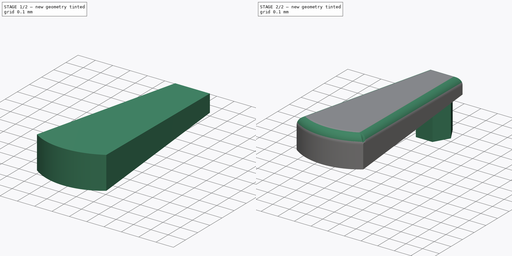
[diagram: build sequence overview — one tinted view per stage of 2, left to right]
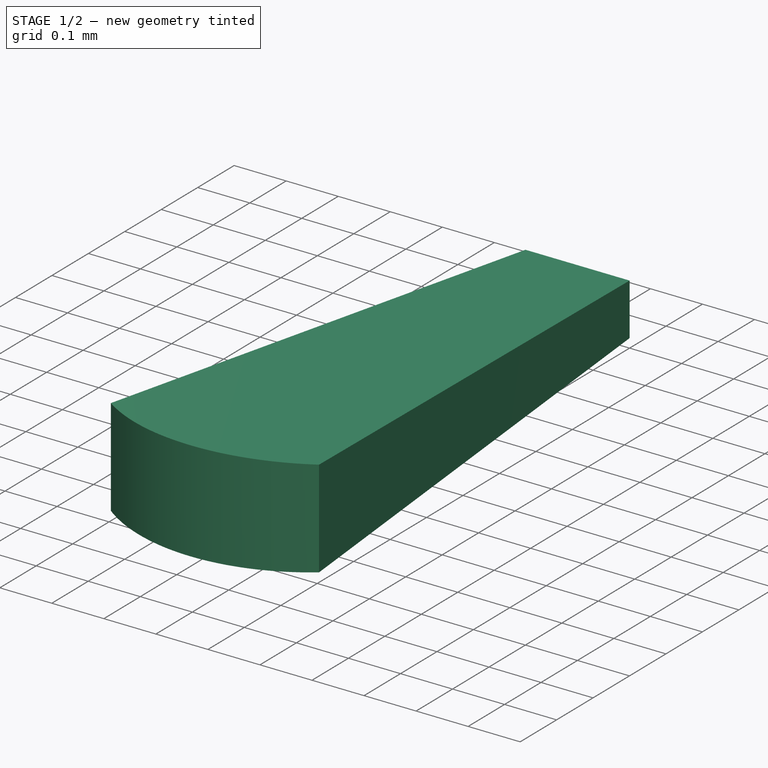
[diagram: stage 1 of 2 — iso view after this stage's code; geometry added in this stage tinted green]
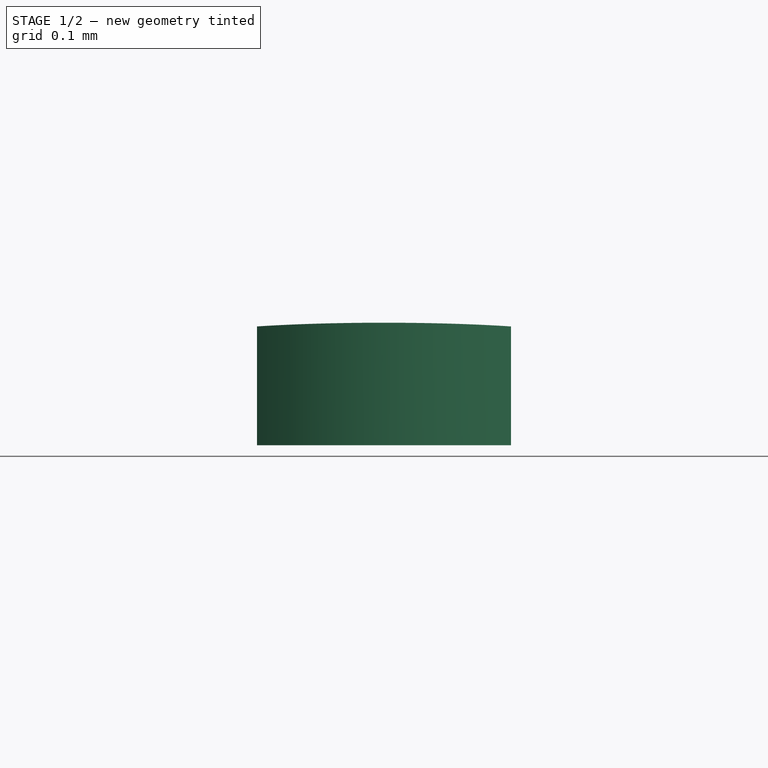
[diagram: stage 1 of 2 — front view after this stage's code; geometry added in this stage tinted green]
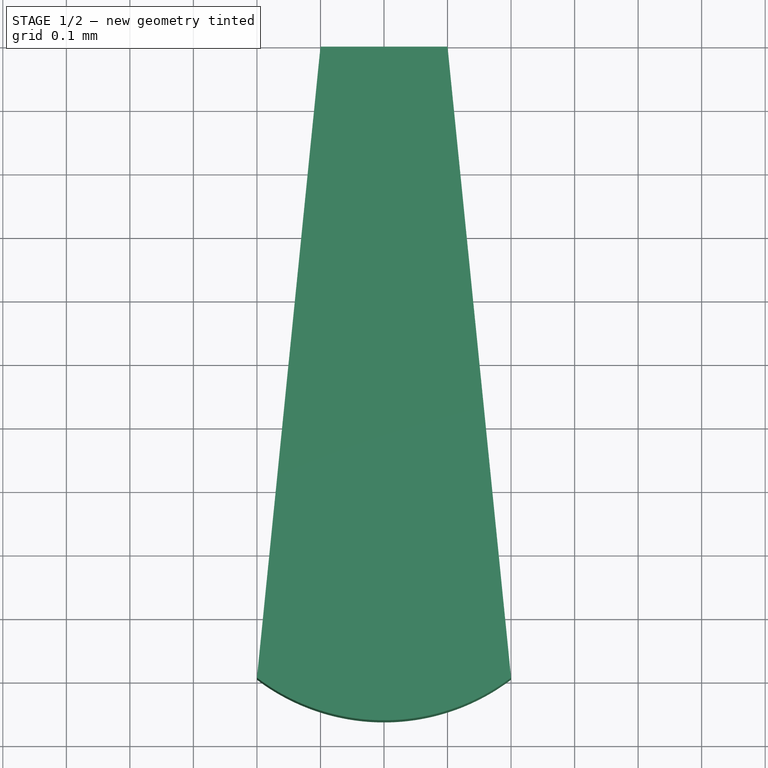
[diagram: stage 1 of 2 — top view after this stage's code; geometry added in this stage tinted green]
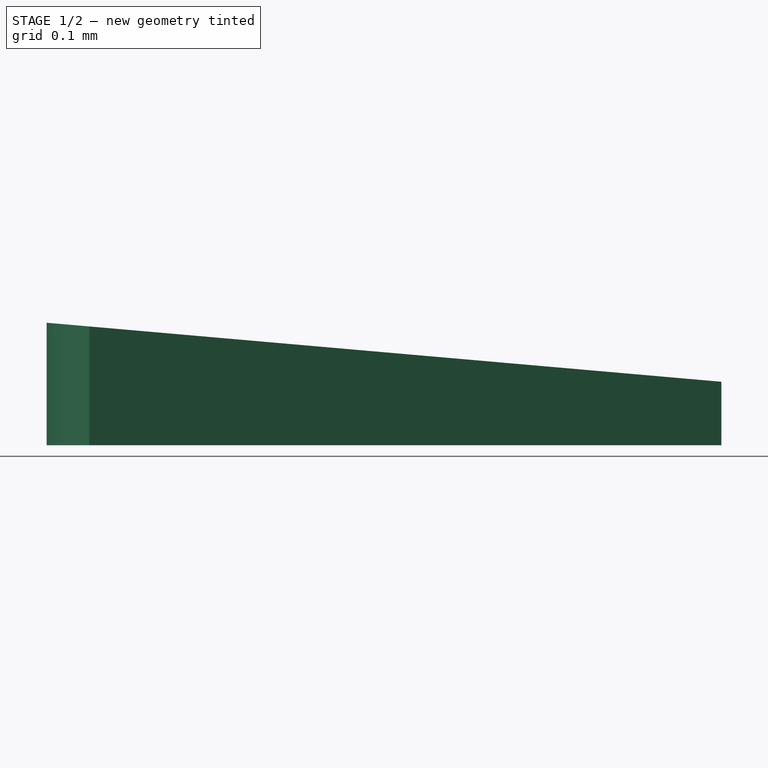
[diagram: stage 1 of 2 — right view after this stage's code; geometry added in this stage tinted green]
FCSTD DOCUMENT  (FreeCAD 0.15R4671 (Git))
Label: arm_right
License: All rights reserved
LicenseURL: http://en.wikipedia.org/wiki/All_rights_reserved
objects: Sketcher::SketchObject×2, PartDesign::Pad×2, PartDesign::Draft×1, Part::Fillet×1
note: 8 computed .brp shape members not serialized (recipe doc carries the construction recipe); baked Part::Feature solids carry a one-line shape summary decoded from their .brp

FEATURE [Sketcher::SketchObject] Sketch
  sketch-geometry (6):
    g0: LineSegment StartX=-0.1 StartY=0 StartZ=0 EndX=-0.2 EndY=-0.994987 EndZ=0
    g1: LineSegment StartX=0.1 StartY=0 StartZ=0 EndX=0.2 EndY=-0.994987 EndZ=0
    g2: LineSegment StartX=-0.1 StartY=0 StartZ=0 EndX=0.1 EndY=0 EndZ=0
    g3: GeomPoint [constr] X=0 Y=0 Z=0
    g4: GeomPoint [constr] X=0 Y=-0.4 Z=0
    g5: ArcOfCircle CenterX=0 CenterY=-0.731108 CenterZ=0 NormalX=0 NormalY=0 NormalZ=1 Radius=0.331108 StartAngle=4.06384 EndAngle=5.36094
  constraints (16):
    c: Coincident(g2,g0)
    c: Coincident(g2,g1)
    c: PointOnObject(g3,g2)
    c: Symmetric(g0,g1,g3)
    c: DistanceY(g-1,g3) = 0
    c: DistanceY(g-1,g0) = 0
    c: DistanceX(g-2,g3) = 0
    c: PointOnObject(g4,g-2)
    c: Coincident(g5,g0)
    c: Coincident(g5,g1)
    c: PointOnObject(g4,g5)
    c: DistanceX(g-2,g0) = -0.2
    c: Distance(g-1,g4) = 0.4
    c: Distance(g-1,g0) = 0.1
    c: Symmetric(g0,g1,g-2)
    c: Distance(g0) = 1
FEATURE [PartDesign::Pad] Pad
  Length = 0.1
  Length2 = 100
  Sketch = -> Sketch
  Type = 0
FEATURE [PartDesign::Draft] Draft
  Angle = 5
  Base = -> Pad [Face6]
  NeutralPlane = -> Pad [Face1]
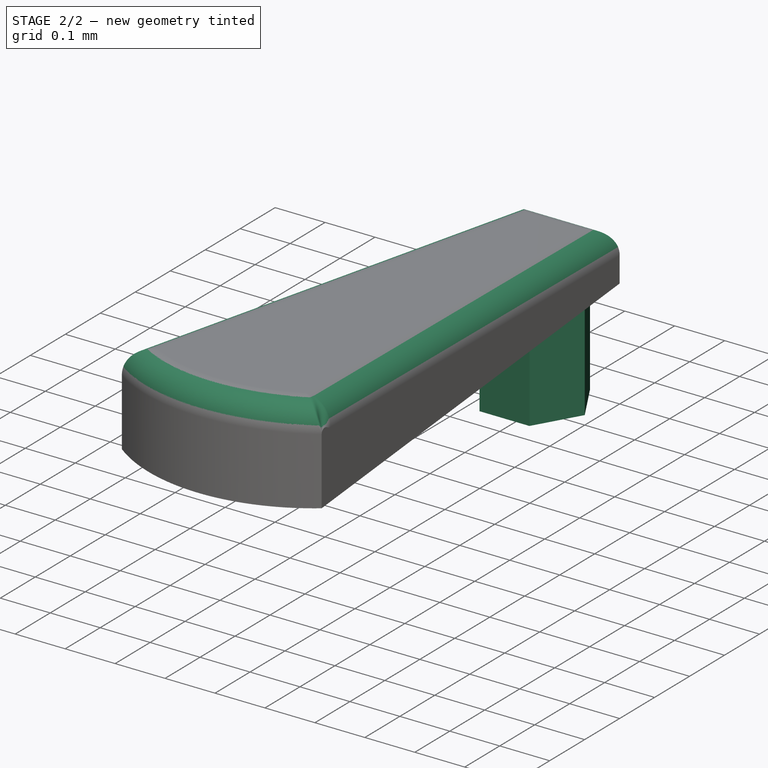
[diagram: stage 2 of 2 — iso view after this stage's code; geometry added in this stage tinted green]
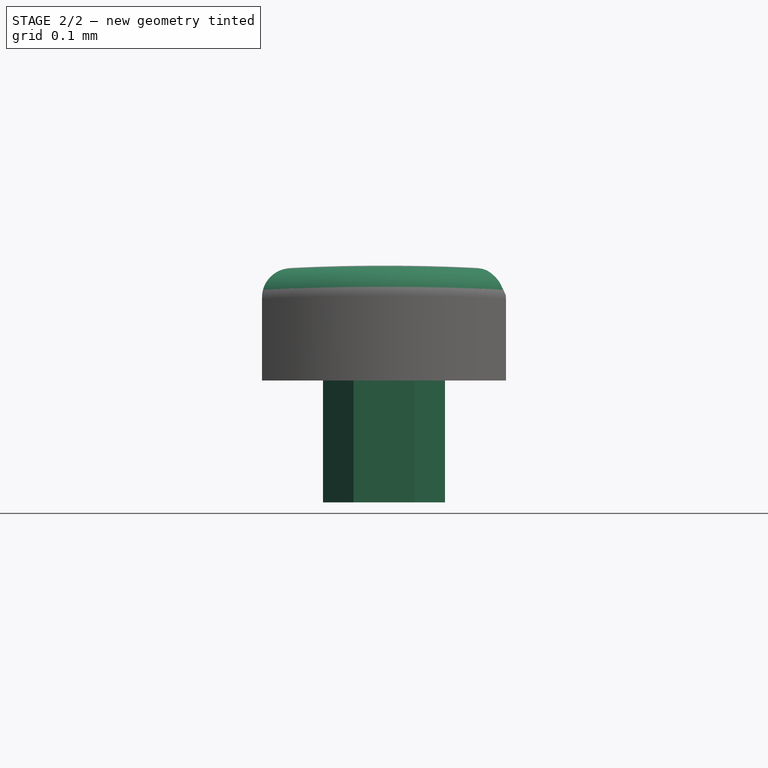
[diagram: stage 2 of 2 — front view after this stage's code; geometry added in this stage tinted green]
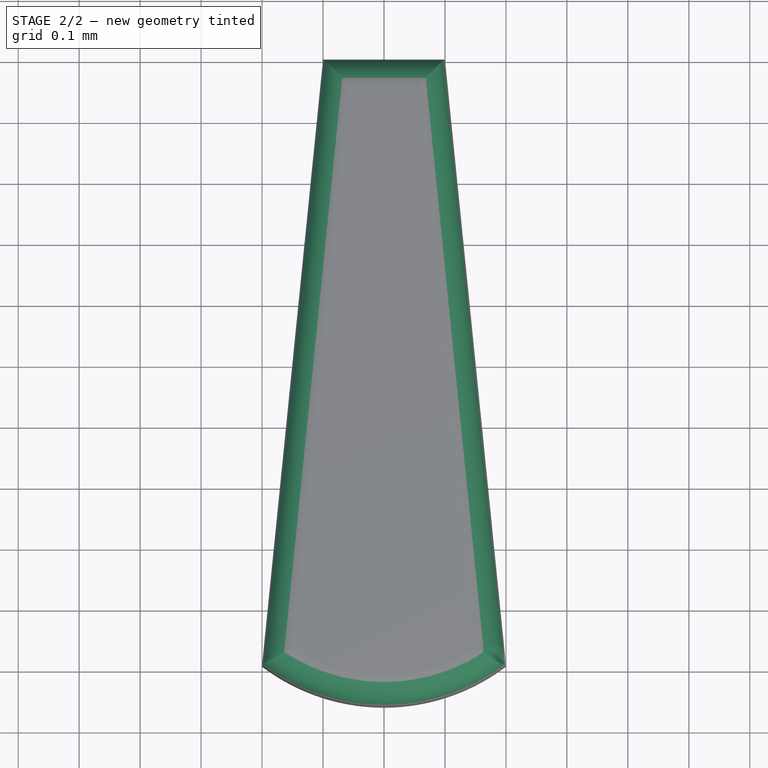
[diagram: stage 2 of 2 — top view after this stage's code; geometry added in this stage tinted green]
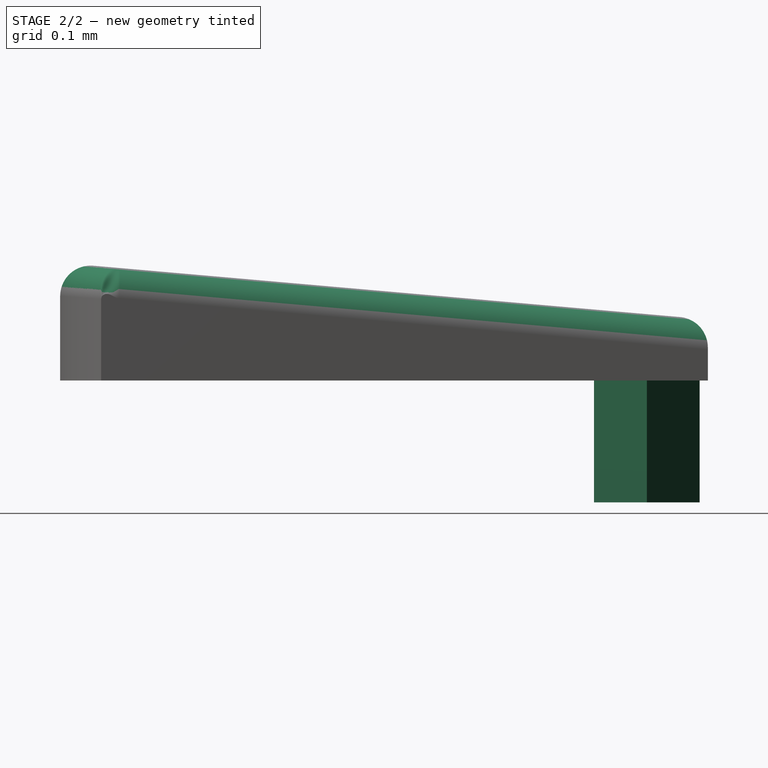
[diagram: stage 2 of 2 — right view after this stage's code; geometry added in this stage tinted green]
FEATURE [Part::Fillet] Fillet
  Base = -> Draft
  Edges = 4 edges r=0.05: [Edge4,Edge7,Edge10,Edge12]
FEATURE [Sketcher::SketchObject] Sketch001  label="join"
  Placement = pos=(0,0,0) rot=(1,0,0;3.14159rad)
  Support = -> Fillet [Face4]
  sketch-geometry (7):
    g0: LineSegment StartX=0.1 StartY=0.1 StartZ=0 EndX=0.05 EndY=0.186603 EndZ=0
    g1: LineSegment StartX=0.05 StartY=0.186603 StartZ=0 EndX=-0.05 EndY=0.186603 EndZ=0
    g2: LineSegment StartX=-0.05 StartY=0.186603 StartZ=0 EndX=-0.1 EndY=0.1 EndZ=0
    g3: LineSegment StartX=-0.1 StartY=0.1 StartZ=0 EndX=-0.05 EndY=0.0133975 EndZ=0
    g4: LineSegment StartX=-0.05 StartY=0.0133975 StartZ=0 EndX=0.05 EndY=0.0133975 EndZ=0
    g5: LineSegment StartX=0.05 StartY=0.0133975 StartZ=0 EndX=0.1 EndY=0.1 EndZ=0
    g6: Circle [constr] CenterX=0 CenterY=0.1 CenterZ=0 NormalX=0 NormalY=0 NormalZ=1 Radius=0.1
  constraints (18):
    c: Coincident(g0,g1)
    c: Coincident(g1,g2)
    c: Coincident(g2,g3)
    c: Coincident(g3,g4)
    c: Coincident(g4,g5)
    c: Coincident(g5,g0)
    c: Equal(g0, g1-g5) x5
    c: PointOnObject(g0,g6)
    c: PointOnObject(g1,g6)
    c: PointOnObject(g2,g6)
    c: PointOnObject(g3,g6)
    c: PointOnObject(g4,g6)
    c: PointOnObject(g5,g6)
    c: Coincident(g3,g-1)
    c: Radius(g6) = 0.1
    c: Distance(g-1,g6) = 0.1
    c: DistanceX(g-2,g6) = 0
    c: Parallel(g4,g-1)
FEATURE [PartDesign::Pad] Pad001  label="PadJoin"
  Length = 0.2
  Length2 = 100
  Sketch = -> Sketch001
  Type = 0
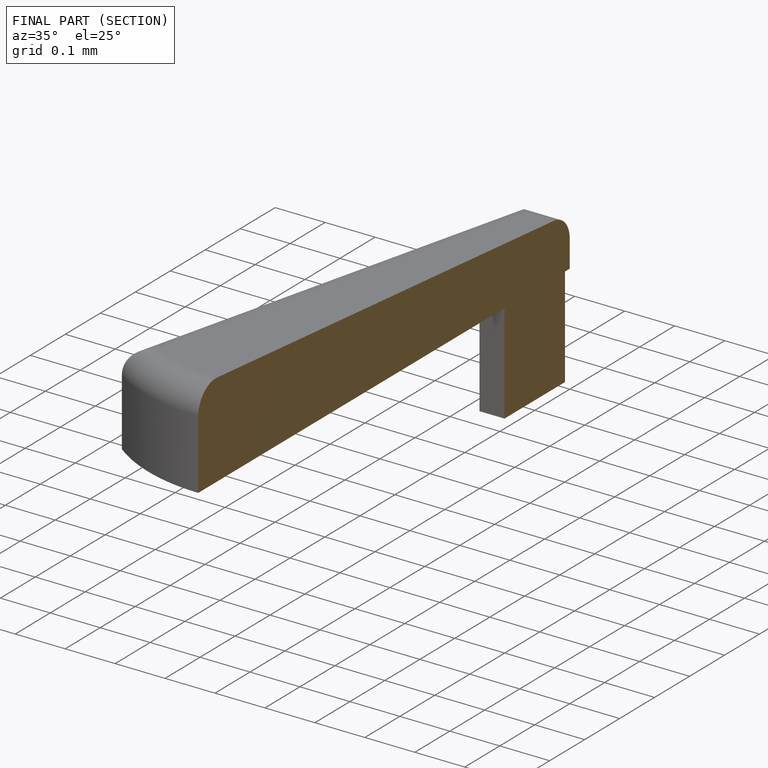
[diagram: finished part — half-section view (interior)]
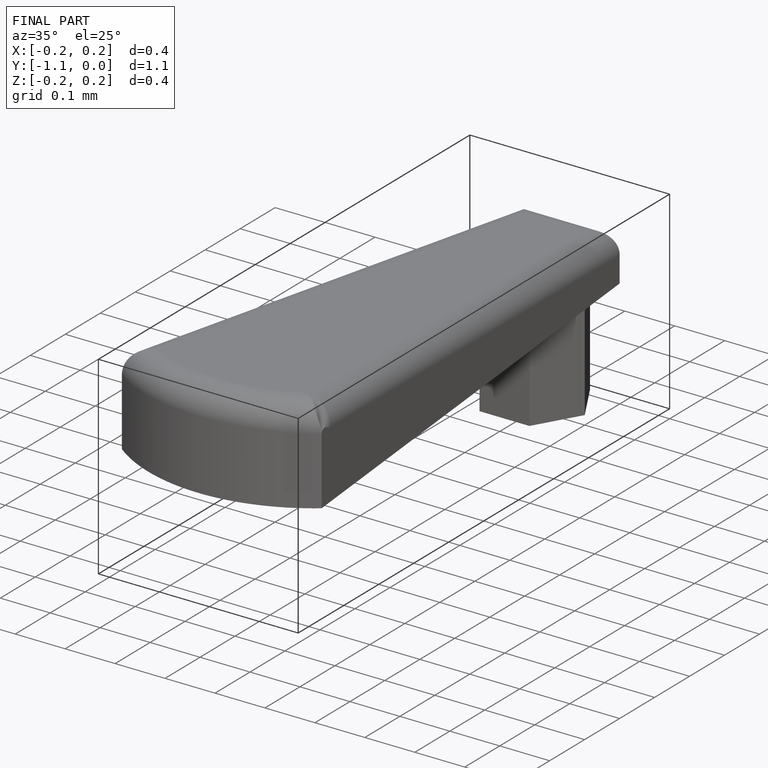
[diagram: finished part — iso view with bounding-box wireframe]
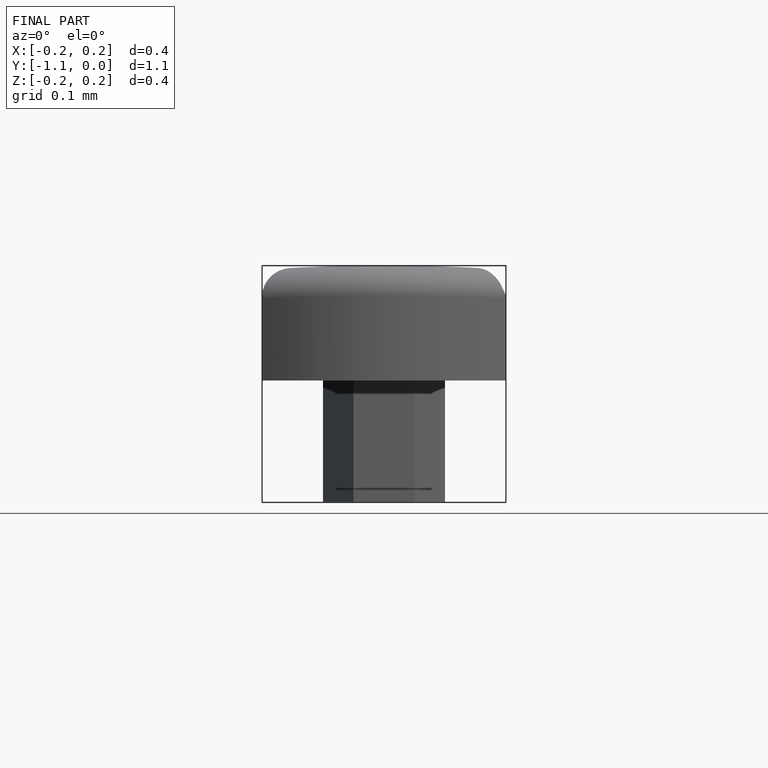
[diagram: finished part — front view with bounding-box wireframe]
